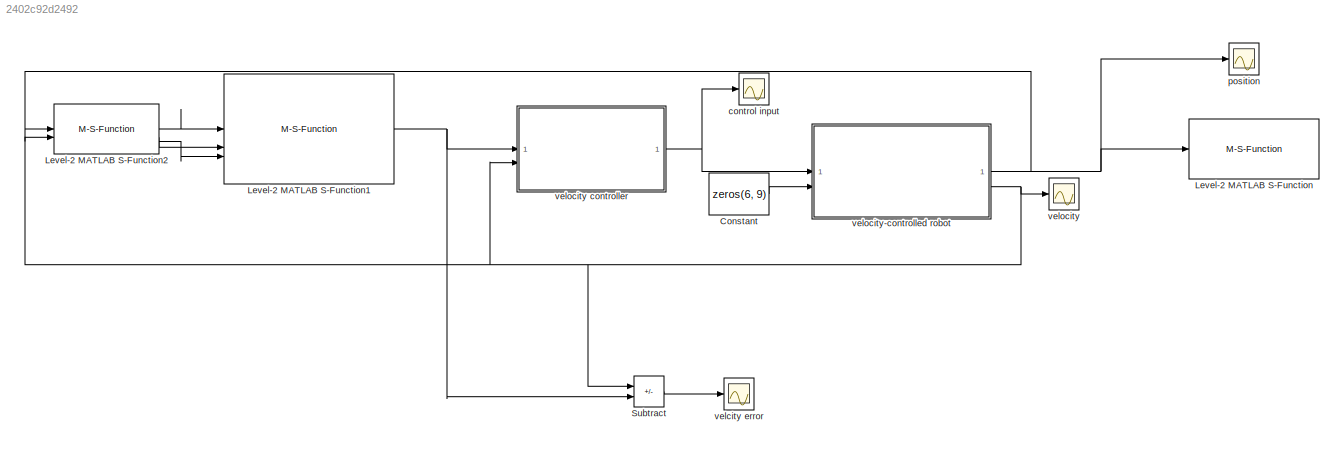
MODEL slx_2402c92d2492
KIND model
CONFIG AbsTol = auto
CONFIG EnableMultiTasking = off
CONFIG FixedStep = 1e-3
CONFIG MaxStep = 0.2
CONFIG MinStep = auto
CONFIG PostLoadFcn = rigid_body = importrobot('urdf\lbr_description\urdf\iiwa7.urdf');\nrigid_body.DataFormat = 'column';\nrigid_body.Gravity = [0 0 -9.81];\ninit_joint_pos = [  -0.4689    0.4696         0   -1.0671    0.0670    1.2112   -0.3207];\nrobot = get_robot_chain(rigid_body);\nn = robot.dof;\nT_init = forward_kin_general(robot, init_joint_pos);\nRs = T_init(1:3,1:3);\nps = T_init(1:3,4);\np1 = 0;\np2 = 0.3;\nlambda0 = 0...<+92ch>
CONFIG RelTol = 1e-3
CONFIG SampleTimeConstraint = Unconstrained
CONFIG SolverName = VariableStepAuto
CONFIG StartTime = 0.0
CONFIG StopTime = 10
BLOCK [Constant] Constant
  Value = zeros(6, 9)
  VectorParams1D = off
BLOCK [M-S-Function] Level-2 MATLAB S-Function
  FunctionName = render_to_MICSys
BLOCK [M-S-Function] Level-2 MATLAB S-Function1
  FunctionName = general_task_controller
  Parameters = Kp, Ki
BLOCK [M-S-Function] Level-2 MATLAB S-Function2
  FunctionName = rcm_generator
  Parameters = robot, T_init, p1, p2, lambda0
BLOCK [Sum] Subtract
  IconShape = rectangular
  Inputs = +-
BLOCK [Scope] control input
  ActiveDisplayYMaximum = 1.5048957484195251
  ActiveDisplayYMinimum = -1.4617064454659199
  Floating = off
  GraphicalSettings = {"Style":{"BackgroundColor":[0.12941176470588237,0.12941176470588237,0.12941176470588237],"AxesColor":[0.07058823529411765,0.07058823529411765,0.07058823529411765],"LabelsColor":[0.8509803921568627,0.8509803921568627,0.8509803921568627],"PreserveColors":false,"Visible":[true,true,true,true,true,true,true],"LineStyle":["-","-","-","-","-","-","-"],"LineWidth":[1.5,1.5,1.5,1.5,1.5,1.5,1.5],"BarWidth...<+2863ch>
  MultipleDisplayCache = [{"MaxYLimMag":1.5048957484195251,"MaxYLimReal":1.5048957484195251,"MinYLimMag":0,"MinYLimReal":-1.4617064454659199,"PlotAsMagnitudePhase":false,"ShowGrid":true,"ShowLegend":false,"Title":"%<SignalLabel>","YLabel":""}]
  NumInputPorts = 1
  ScopeFrameLocation = window
  WasSavedAsWebScope = on
  WindowPosition = [0.000000,35.000000,1707.000000,996.000000,]
BLOCK [Scope] position
  ActiveDisplayYMaximum = 1.2703272845814551
  ActiveDisplayYMinimum = -1.5938105162499114
  DataLoggingVariableName = ScopeData2
  Floating = off
  GraphicalSettings = {"Style":{"BackgroundColor":[0.12941176470588237,0.12941176470588237,0.12941176470588237],"AxesColor":[0.07058823529411765,0.07058823529411765,0.07058823529411765],"LabelsColor":[0.8509803921568627,0.8509803921568627,0.8509803921568627],"PreserveColors":false,"Visible":[true,true,true,true,true,true,true],"LineStyle":["-","-","-","-","-","-","-"],"LineWidth":[1.5,1.5,1.5,1.5,1.5,1.5,1.5],"BarWidth...<+2973ch>
  MultipleDisplayCache = [{"MaxYLimMag":1.7016980299112658,"MaxYLimReal":1.2703272845814551,"MinYLimMag":0,"MinYLimReal":-1.5938105162499114,"PlotAsMagnitudePhase":false,"ShowGrid":true,"ShowLegend":false,"Title":"%<SignalLabel>","YLabel":""}]
  NumInputPorts = 1
  ScopeFrameLocation = window
  WasSavedAsWebScope = on
  WindowPosition = [-1879.000000,424.000000,897.000000,493.000000,]
BLOCK [Scope] velcity error
  ActiveDisplayYMaximum = 0.046630480585739612
  ActiveDisplayYMinimum = -0.062044339452108591
  DataLoggingVariableName = ScopeData3
  Floating = off
  GraphicalSettings = {"Style":{"BackgroundColor":[0.12941176470588237,0.12941176470588237,0.12941176470588237],"AxesColor":[0.07058823529411765,0.07058823529411765,0.07058823529411765],"LabelsColor":[0.8509803921568627,0.8509803921568627,0.8509803921568627],"PreserveColors":false,"Visible":[true,true,true,true,true,true,true],"LineStyle":["-","-","-","-","-","-","-"],"LineWidth":[1.5,1.5,1.5,1.5,1.5,1.5,1.5],"BarWidth...<+2715ch>
  MultipleDisplayCache = [{"MaxYLimMag":0.062044339452108591,"MaxYLimReal":0.046630480585739612,"MinYLimMag":0,"MinYLimReal":-0.062044339452108591,"PlotAsMagnitudePhase":false,"ShowGrid":true,"ShowLegend":true,"Title":"%<SignalLabel>","YLabel":""}]
  NumInputPorts = 1
  ScopeFrameLocation = window
  ShowLegend = on
  WasSavedAsWebScope = on
  WindowPosition = [-2047.000000,49.000000,2048.000000,1081.000000,]
BLOCK [Scope] velocity
  ActiveDisplayYMaximum = 1.2050336725047781
  ActiveDisplayYMinimum = -0.85039539593804636
  DataLoggingVariableName = ScopeData1
  Floating = off
  GraphicalSettings = {"Style":{"BackgroundColor":[0.12941176470588237,0.12941176470588237,0.12941176470588237],"AxesColor":[0.07058823529411765,0.07058823529411765,0.07058823529411765],"LabelsColor":[0.8509803921568627,0.8509803921568627,0.8509803921568627],"PreserveColors":false,"Visible":[true,true,true,true,true,true,true],"LineStyle":["-","-","-","-","-","-","-"],"LineWidth":[1.5,1.5,1.5,1.5,1.5,1.5,1.5],"BarWidth...<+2971ch>
  MultipleDisplayCache = [{"MaxYLimMag":1.2494134396573697,"MaxYLimReal":1.2050336725047781,"MinYLimMag":0,"MinYLimReal":-0.85039539593804636,"PlotAsMagnitudePhase":false,"ShowGrid":true,"ShowLegend":true,"Title":"%<SignalLabel>","YLabel":""}]
  NumInputPorts = 1
  ScopeFrameLocation = window
  ShowLegend = on
  WasSavedAsWebScope = on
  WindowPosition = [1.000000,49.000000,1707.000000,996.000000,]
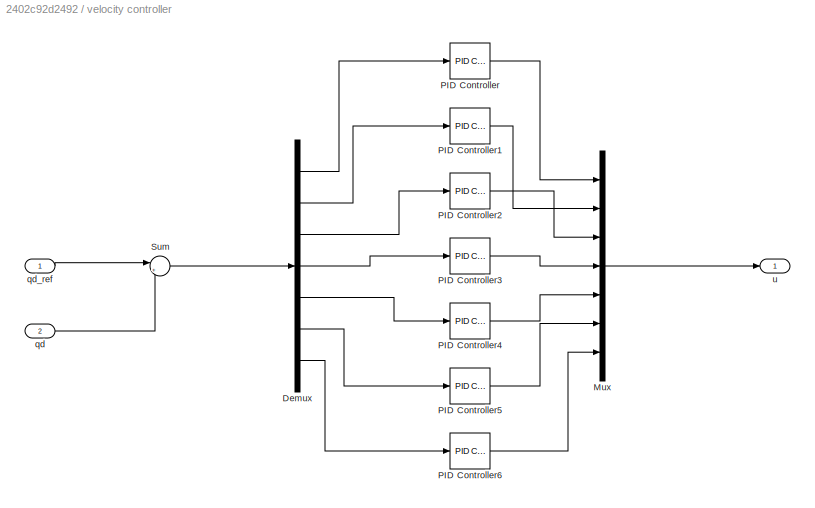
BLOCK [SubSystem] velocity controller
BLOCK [Demux] velocity controller/Demux
  Outputs = 7
BLOCK [Mux] velocity controller/Mux
  DisplayOption = bar
  Inputs = 7
BLOCK [Reference] velocity controller/PID Controller  REF=slpidlib/PID Controller
  LibrarySourceBlock = simulink/Continuous/PID Controller
  SourceBlock = slpidlib/PID Controller
  SourceType = PID 1dof
BLOCK [Reference] velocity controller/PID Controller1  REF=slpidlib/PID Controller
  LibrarySourceBlock = simulink/Continuous/PID Controller
  SourceBlock = slpidlib/PID Controller
  SourceType = PID 1dof
BLOCK [Reference] velocity controller/PID Controller2  REF=slpidlib/PID Controller
  LibrarySourceBlock = simulink/Continuous/PID Controller
  SourceBlock = slpidlib/PID Controller
  SourceType = PID 1dof
BLOCK [Reference] velocity controller/PID Controller3  REF=slpidlib/PID Controller
  LibrarySourceBlock = simulink/Continuous/PID Controller
  SourceBlock = slpidlib/PID Controller
  SourceType = PID 1dof
BLOCK [Reference] velocity controller/PID Controller4  REF=slpidlib/PID Controller
  LibrarySourceBlock = simulink/Continuous/PID Controller
  SourceBlock = slpidlib/PID Controller
  SourceType = PID 1dof
BLOCK [Reference] velocity controller/PID Controller5  REF=slpidlib/PID Controller
  LibrarySourceBlock = simulink/Continuous/PID Controller
  SourceBlock = slpidlib/PID Controller
  SourceType = PID 1dof
BLOCK [Reference] velocity controller/PID Controller6  REF=slpidlib/PID Controller
  LibrarySourceBlock = simulink/Continuous/PID Controller
  SourceBlock = slpidlib/PID Controller
  SourceType = PID 1dof
BLOCK [Sum] velocity controller/Sum
  Inputs = |+-
BLOCK [Inport] velocity controller/qd
  Port = 2
BLOCK [Inport] velocity controller/qd_ref
BLOCK [Outport] velocity controller/u
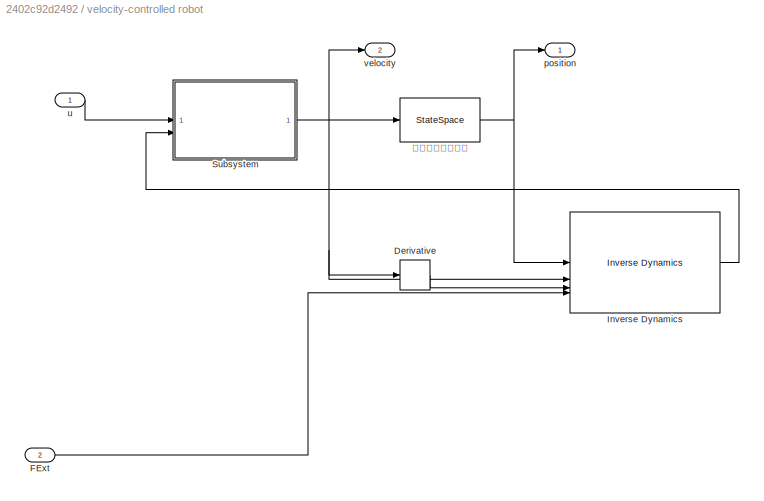
BLOCK [SubSystem] velocity-controlled robot
BLOCK [Derivative] velocity-controlled robot/Derivative
BLOCK [Inport] velocity-controlled robot/FExt
  Port = 2
BLOCK [Reference] velocity-controlled robot/Inverse Dynamics  REF=robotmaniplib/Inverse Dynamics
  SourceBlock = robotmaniplib/Inverse Dynamics
  SourceType = Inverse Dynamics
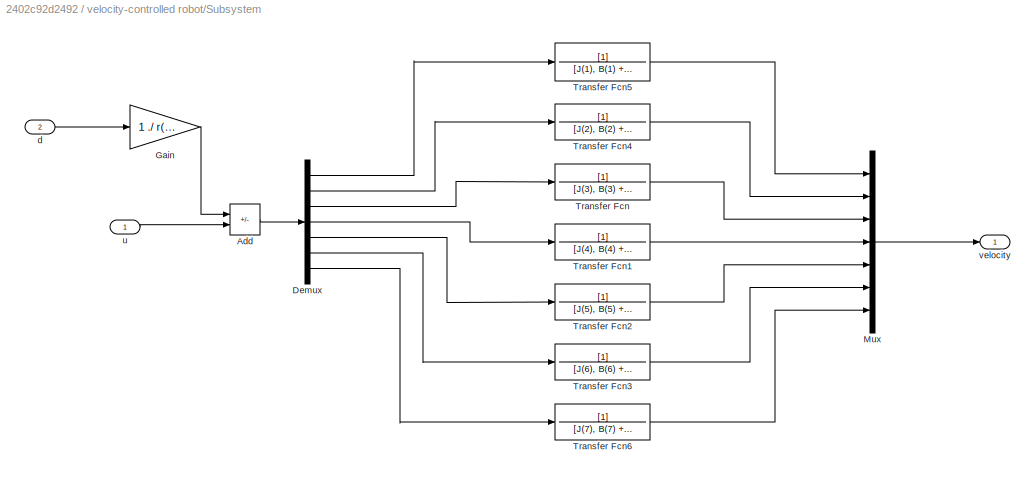
BLOCK [SubSystem] velocity-controlled robot/Subsystem
BLOCK [Sum] velocity-controlled robot/Subsystem/Add
  IconShape = rectangular
  Inputs = -+
BLOCK [Demux] velocity-controlled robot/Subsystem/Demux
  Outputs = 7
BLOCK [Gain] velocity-controlled robot/Subsystem/Gain
  Gain = 1 ./ r(:)
BLOCK [Mux] velocity-controlled robot/Subsystem/Mux
  DisplayOption = bar
  Inputs = 7
BLOCK [TransferFcn] velocity-controlled robot/Subsystem/Transfer Fcn
  Denominator = [J(3), B(3) + K(3)^2/RR(3)] * r(3)
BLOCK [TransferFcn] velocity-controlled robot/Subsystem/Transfer Fcn1
  Denominator = [J(4), B(4) + K(4)^2/RR(4)] * r(4)
BLOCK [TransferFcn] velocity-controlled robot/Subsystem/Transfer Fcn2
  Denominator = [J(5), B(5) + K(5)^2/RR(5)] * r(5)
BLOCK [TransferFcn] velocity-controlled robot/Subsystem/Transfer Fcn3
  Denominator = [J(6), B(6) + K(6)^2/RR(6)] * r(6)
BLOCK [TransferFcn] velocity-controlled robot/Subsystem/Transfer Fcn4
  Denominator = [J(2), B(2) + K(2)^2/RR(2)] * r(2)
BLOCK [TransferFcn] velocity-controlled robot/Subsystem/Transfer Fcn5
  Denominator = [J(1), B(1) + K(1)^2/RR(1)] * r(1)
BLOCK [TransferFcn] velocity-controlled robot/Subsystem/Transfer Fcn6
  Denominator = [J(7), B(7) + K(7)^2/RR(7)] * r(7)
BLOCK [Inport] velocity-controlled robot/Subsystem/d
  Port = 2
BLOCK [Inport] velocity-controlled robot/Subsystem/u
BLOCK [Outport] velocity-controlled robot/Subsystem/velocity
BLOCK [Outport] velocity-controlled robot/position
BLOCK [Inport] velocity-controlled robot/u
BLOCK [Outport] velocity-controlled robot/velocity
  Port = 2
BLOCK [StateSpace] velocity-controlled robot/带初值的速度积分
  A = zeros(7)
  B = eye(7)
  C = eye(7)
  D = zeros(7)
  InitialCondition = init_joint_pos
LINE Constant:1 -> velocity-controlled robot:2
NET Level-2 MATLAB S-Function1:1 -> Subtract:2, velocity controller:1
LINE Level-2 MATLAB S-Function2:1 -> Level-2 MATLAB S-Function1:1
LINE Level-2 MATLAB S-Function2:2 -> Level-2 MATLAB S-Function1:2
LINE Level-2 MATLAB S-Function2:3 -> Level-2 MATLAB S-Function1:3
LINE Subtract:1 -> velcity error:1
LINE velocity controller/Demux:1 -> velocity controller/PID Controller:1
LINE velocity controller/Demux:2 -> velocity controller/PID Controller1:1
LINE velocity controller/Demux:3 -> velocity controller/PID Controller2:1
LINE velocity controller/Demux:4 -> velocity controller/PID Controller3:1
LINE velocity controller/Demux:5 -> velocity controller/PID Controller4:1
LINE velocity controller/Demux:6 -> velocity controller/PID Controller5:1
LINE velocity controller/Demux:7 -> velocity controller/PID Controller6:1
LINE velocity controller/Mux:1 -> velocity controller/u:1
LINE velocity controller/PID Controller1:1 -> velocity controller/Mux:2
LINE velocity controller/PID Controller2:1 -> velocity controller/Mux:3
LINE velocity controller/PID Controller3:1 -> velocity controller/Mux:4
LINE velocity controller/PID Controller4:1 -> velocity controller/Mux:5
LINE velocity controller/PID Controller5:1 -> velocity controller/Mux:6
LINE velocity controller/PID Controller6:1 -> velocity controller/Mux:7
LINE velocity controller/PID Controller:1 -> velocity controller/Mux:1
LINE velocity controller/Sum:1 -> velocity controller/Demux:1
LINE velocity controller/qd:1 -> velocity controller/Sum:2
LINE velocity controller/qd_ref:1 -> velocity controller/Sum:1
NET velocity controller:1 -> control input:1, velocity-controlled robot:1
LINE velocity-controlled robot/Derivative:1 -> velocity-controlled robot/Inverse Dynamics:3
LINE velocity-controlled robot/FExt:1 -> velocity-controlled robot/Inverse Dynamics:4
LINE velocity-controlled robot/Inverse Dynamics:1 -> velocity-controlled robot/Subsystem:2
LINE velocity-controlled robot/Subsystem/Add:1 -> velocity-controlled robot/Subsystem/Demux:1
LINE velocity-controlled robot/Subsystem/Demux:1 -> velocity-controlled robot/Subsystem/Transfer Fcn5:1
LINE velocity-controlled robot/Subsystem/Demux:2 -> velocity-controlled robot/Subsystem/Transfer Fcn4:1
LINE velocity-controlled robot/Subsystem/Demux:3 -> velocity-controlled robot/Subsystem/Transfer Fcn:1
LINE velocity-controlled robot/Subsystem/Demux:4 -> velocity-controlled robot/Subsystem/Transfer Fcn1:1
LINE velocity-controlled robot/Subsystem/Demux:5 -> velocity-controlled robot/Subsystem/Transfer Fcn2:1
LINE velocity-controlled robot/Subsystem/Demux:6 -> velocity-controlled robot/Subsystem/Transfer Fcn3:1
LINE velocity-controlled robot/Subsystem/Demux:7 -> velocity-controlled robot/Subsystem/Transfer Fcn6:1
LINE velocity-controlled robot/Subsystem/Gain:1 -> velocity-controlled robot/Subsystem/Add:1
LINE velocity-controlled robot/Subsystem/Mux:1 -> velocity-controlled robot/Subsystem/velocity:1
LINE velocity-controlled robot/Subsystem/Transfer Fcn1:1 -> velocity-controlled robot/Subsystem/Mux:4
LINE velocity-controlled robot/Subsystem/Transfer Fcn2:1 -> velocity-controlled robot/Subsystem/Mux:5
LINE velocity-controlled robot/Subsystem/Transfer Fcn3:1 -> velocity-controlled robot/Subsystem/Mux:6
LINE velocity-controlled robot/Subsystem/Transfer Fcn4:1 -> velocity-controlled robot/Subsystem/Mux:2
LINE velocity-controlled robot/Subsystem/Transfer Fcn5:1 -> velocity-controlled robot/Subsystem/Mux:1
LINE velocity-controlled robot/Subsystem/Transfer Fcn6:1 -> velocity-controlled robot/Subsystem/Mux:7
LINE velocity-controlled robot/Subsystem/Transfer Fcn:1 -> velocity-controlled robot/Subsystem/Mux:3
LINE velocity-controlled robot/Subsystem/d:1 -> velocity-controlled robot/Subsystem/Gain:1
LINE velocity-controlled robot/Subsystem/u:1 -> velocity-controlled robot/Subsystem/Add:2
NET velocity-controlled robot/Subsystem:1 -> velocity-controlled robot/Derivative:1, velocity-controlled robot/Inverse Dynamics:2, velocity-controlled robot/velocity:1, velocity-controlled robot/带初值的速度积分:1
LINE velocity-controlled robot/u:1 -> velocity-controlled robot/Subsystem:1
NET velocity-controlled robot/带初值的速度积分:1 -> velocity-controlled robot/Inverse Dynamics:1, velocity-controlled robot/position:1
NET velocity-controlled robot:1 -> Level-2 MATLAB S-Function2:1, Level-2 MATLAB S-Function:1, position:1
NET velocity-controlled robot:2 -> Level-2 MATLAB S-Function2:2, Subtract:1, velocity controller:2, velocity:1
note: NET lines group one-source signal fan-out (src -> all destinations, sorted); 1:1 wires keep LINE
